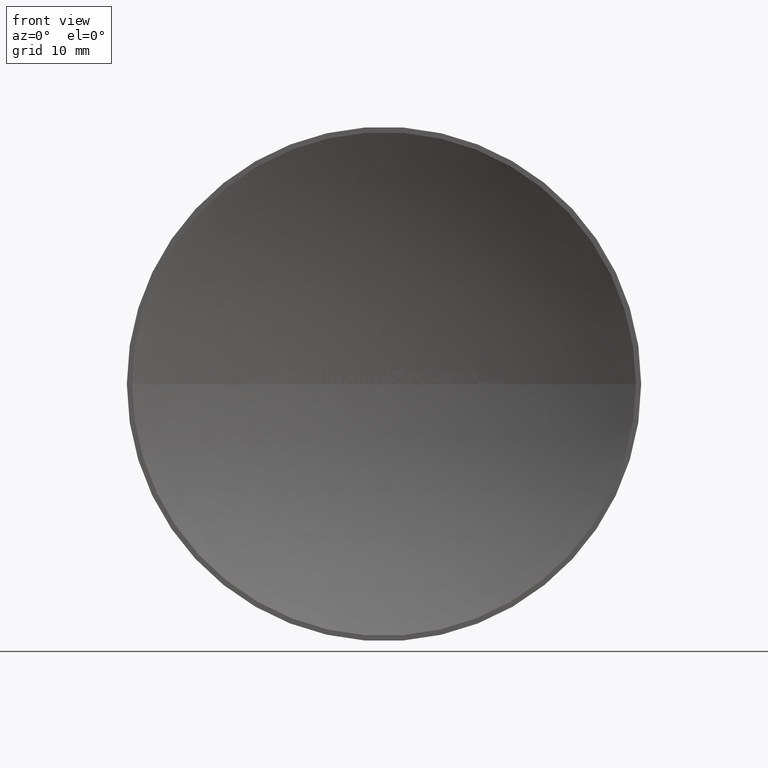
[diagram: clean part render]
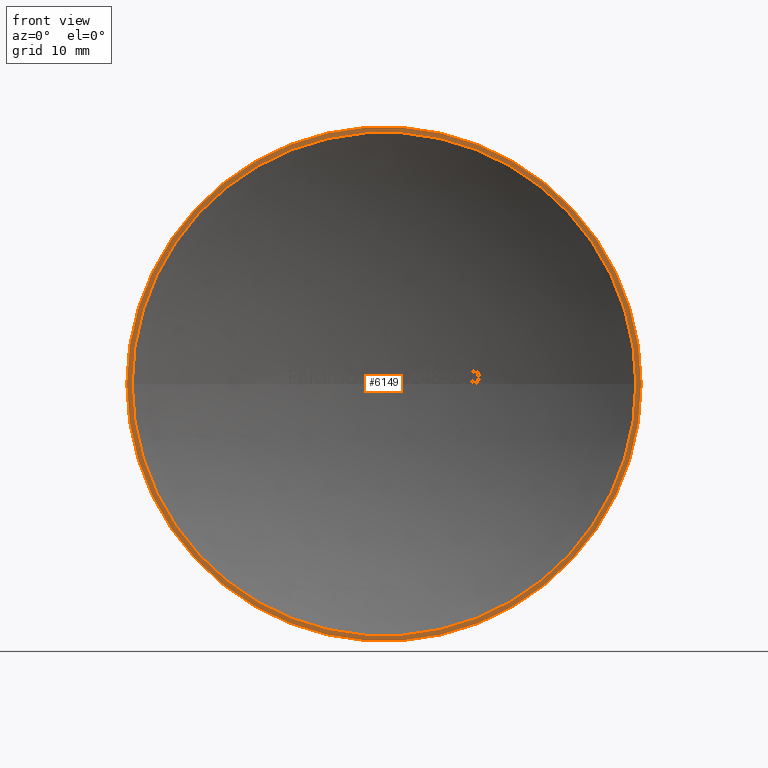
[diagram: same view with one face highlighted and labeled with its STEP entity id]
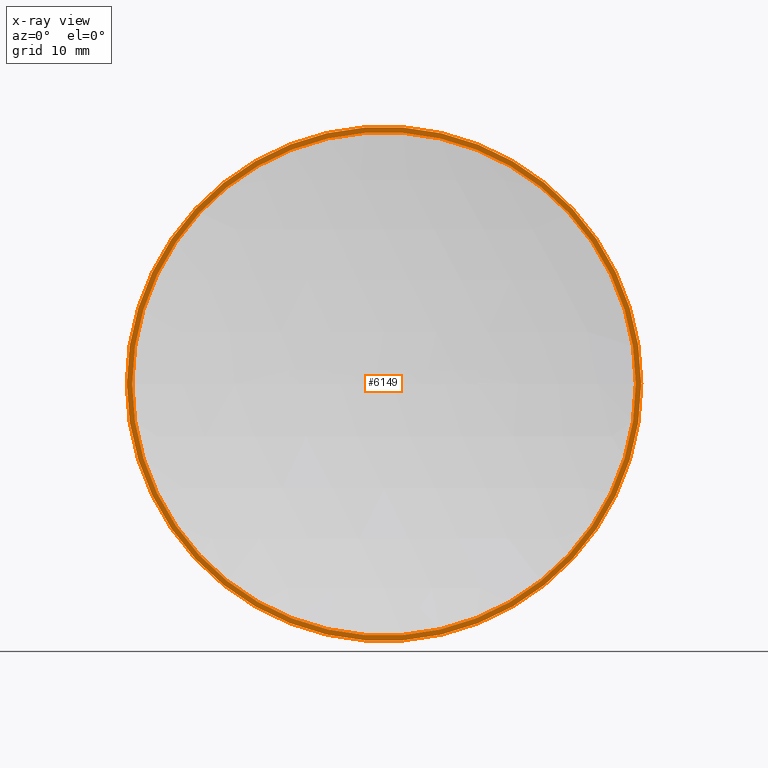
[diagram: x-ray of the same camera — body ghosted, the highlighted face saturated]
A machine part, front view. The second image highlights one B-rep face of the part: STEP entity #6149.
The next image is the same camera in x-ray: the body ghosted, the highlighted face saturated — about 0% of this face is hidden behind the body in this view.
In plain terms, the highlighted planar face has unit normal (-0, -1, 0).
Its self-contained STEP definition (entity closure, byte-faithful):
#445 = ORIENTED_EDGE ( 'NONE', *, *, #4341, .F. ) ;
#571 = EDGE_LOOP ( 'NONE', ( #1689, #9383 ) ) ;
#637 = DIRECTION ( 'NONE',  ( -7.319342501363578300E-015, -1.000000000000000000, -0.0000000000000000000 ) ) ;
#748 = DIRECTION ( 'NONE',  ( -7.319342501363578300E-015, -1.000000000000000000, -0.0000000000000000000 ) ) ;
#757 = CARTESIAN_POINT ( 'NONE',  ( 23.64788574058999200, -6.746207689312076300E-015, -2.896030757881546500E-015 ) ) ;
#772 = CARTESIAN_POINT ( 'NONE',  ( -4.391605500818018500E-014, 1.665334536937734800E-013, 0.0000000000000000000 ) ) ;
#782 = EDGE_LOOP ( 'NONE', ( #445, #7571 ) ) ;
#1689 = ORIENTED_EDGE ( 'NONE', *, *, #10478, .T. ) ;
#1768 = VERTEX_POINT ( 'NONE', #1949 ) ;
#1949 = CARTESIAN_POINT ( 'NONE',  ( -23.64788574058970700, 3.398131150768590300E-013, 0.0000000000000000000 ) ) ;
#2342 = CARTESIAN_POINT ( 'NONE',  ( -4.391605500818014100E-014, 1.734723475976807100E-013, 0.0000000000000000000 ) ) ;
#2461 = AXIS2_PLACEMENT_3D ( 'NONE', #4709, #748, #12826 ) ;
#2873 = VERTEX_POINT ( 'NONE', #757 ) ;
#3349 = DIRECTION ( 'NONE',  ( -7.319342501363578300E-015, -1.000000000000000000, -0.0000000000000000000 ) ) ;
#3459 = VERTEX_POINT ( 'NONE', #10488 ) ;
#3787 = DIRECTION ( 'NONE',  ( 1.000000000000000000, -7.319342501363578300E-015, 0.0000000000000000000 ) ) ;
#3962 = CIRCLE ( 'NONE', #2461, 23.64788574059004100 ) ;
#4029 = CARTESIAN_POINT ( 'NONE',  ( 24.15000000000000200, -6.938861931537636400E-015, 0.0000000000000000000 ) ) ;
#4341 = EDGE_CURVE ( 'NONE', #1768, #2873, #3962, .T. ) ;
#4463 = DIRECTION ( 'NONE',  ( -7.319342501363578300E-015, -1.000000000000000000, -0.0000000000000000000 ) ) ;
#4706 = FACE_OUTER_BOUND ( 'NONE', #571, .T. ) ;
#4709 = CARTESIAN_POINT ( 'NONE',  ( -4.391605500818018500E-014, 1.665334536937734800E-013, 0.0000000000000000000 ) ) ;
#5302 = AXIS2_PLACEMENT_3D ( 'NONE', #2342, #3349, #8162 ) ;
#5482 = EDGE_CURVE ( 'NONE', #6641, #3459, #11928, .T. ) ;
#5876 = PLANE ( 'NONE',  #6648 ) ;
#6149 = ADVANCED_FACE ( 'NONE', ( #4706, #7051 ), #5876, .T. ) ;
#6641 = VERTEX_POINT ( 'NONE', #11385 ) ;
#6648 = AXIS2_PLACEMENT_3D ( 'NONE', #4029, #8013, #8992 ) ;
#7051 = FACE_BOUND ( 'NONE', #782, .T. ) ;
#7571 = ORIENTED_EDGE ( 'NONE', *, *, #10171, .F. ) ;
#7649 = CIRCLE ( 'NONE', #10474, 23.64788574059004100 ) ;
#8013 = DIRECTION ( 'NONE',  ( -7.319342501363578300E-015, -1.000000000000000000, 0.0000000000000000000 ) ) ;
#8162 = DIRECTION ( 'NONE',  ( 1.000000000000000000, -7.319342501363579900E-015, 0.0000000000000000000 ) ) ;
#8288 = AXIS2_PLACEMENT_3D ( 'NONE', #10602, #4463, #10554 ) ;
#8992 = DIRECTION ( 'NONE',  ( 1.000000000000000000, -7.319342501363578300E-015, 0.0000000000000000000 ) ) ;
#9383 = ORIENTED_EDGE ( 'NONE', *, *, #5482, .T. ) ;
#9996 = CIRCLE ( 'NONE', #8288, 24.15000000000004500 ) ;
#10171 = EDGE_CURVE ( 'NONE', #2873, #1768, #7649, .T. ) ;
#10474 = AXIS2_PLACEMENT_3D ( 'NONE', #772, #637, #3787 ) ;
#10478 = EDGE_CURVE ( 'NONE', #3459, #6641, #9996, .T. ) ;
#10488 = CARTESIAN_POINT ( 'NONE',  ( 24.15000000000000200, -3.289773810250057000E-015, 0.0000000000000000000 ) ) ;
#10554 = DIRECTION ( 'NONE',  ( 1.000000000000000000, -7.319342501363579900E-015, 0.0000000000000000000 ) ) ;
#10602 = CARTESIAN_POINT ( 'NONE',  ( -4.391605500818014100E-014, 1.734723475976807100E-013, 0.0000000000000000000 ) ) ;
#11385 = CARTESIAN_POINT ( 'NONE',  ( -24.15000000000009100, 3.502344690056114000E-013, 2.957522019940864600E-015 ) ) ;
#11928 = CIRCLE ( 'NONE', #5302, 24.15000000000004500 ) ;
#12826 = DIRECTION ( 'NONE',  ( 1.000000000000000000, -7.319342501363578300E-015, 0.0000000000000000000 ) ) ;